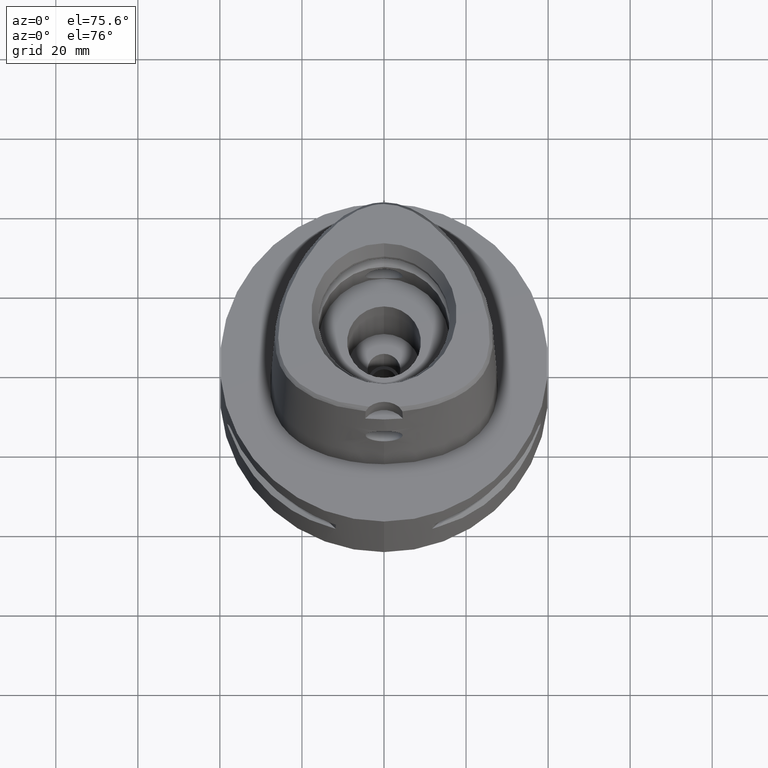
[diagram: clean part render]
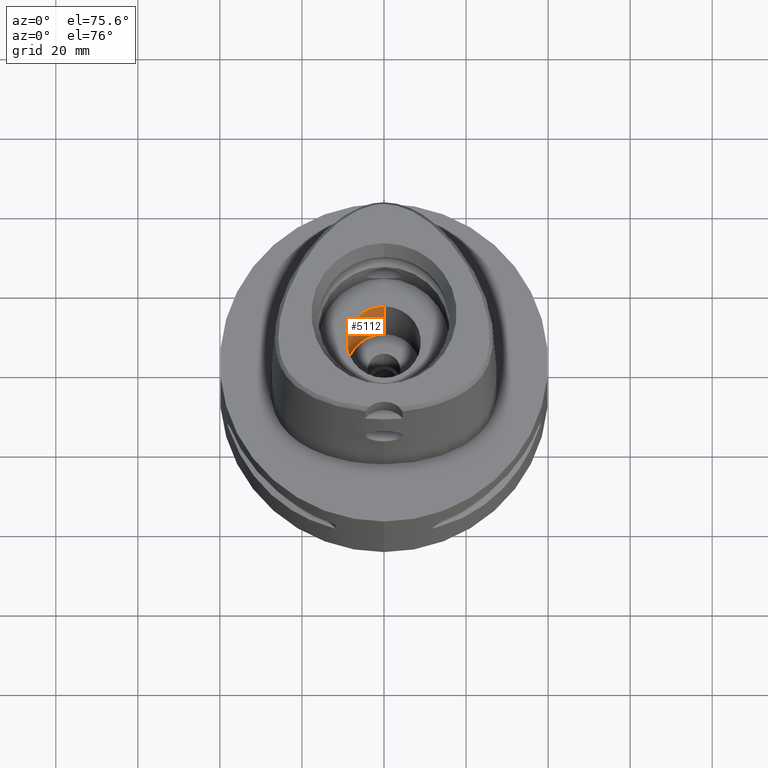
[diagram: same view with one face highlighted and labeled with its STEP entity id]
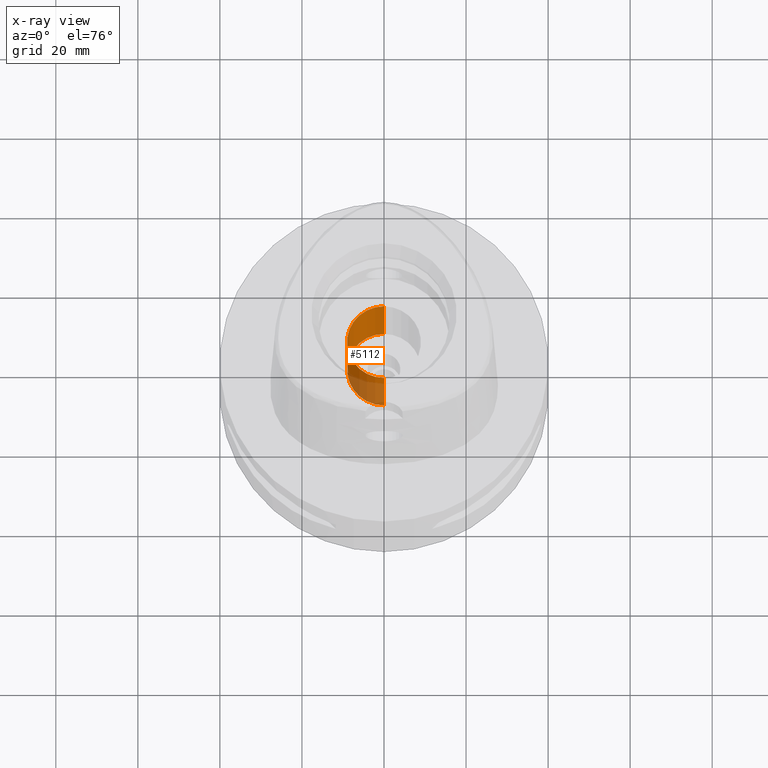
[diagram: x-ray of the same camera — body ghosted, the highlighted face saturated]
A machine part, auxiliary view. The second image highlights one B-rep face of the part: STEP entity #5112.
The next image is the same camera in x-ray: the body ghosted, the highlighted face saturated — about 33% of this face is hidden behind the body in this view.
In plain terms, the highlighted cylindrical surface (partial cylindrical patch) has radius 9 mm, axis along (0, 0, -1).
Its self-contained STEP definition (entity closure, byte-faithful):
#260 = FACE_OUTER_BOUND ( 'NONE', #3313, .T. ) ;
#412 = CARTESIAN_POINT ( 'NONE',  ( 0.0000000000000000000, -9.000000000000000000, -7.000000000000000000 ) ) ;
#490 = ORIENTED_EDGE ( 'NONE', *, *, #4978, .T. ) ;
#492 = CARTESIAN_POINT ( 'NONE',  ( 0.0000000000000000000, 0.0000000000000000000, -7.000000000000000000 ) ) ;
#521 = DIRECTION ( 'NONE',  ( 0.0000000000000000000, -1.000000000000000000, 0.0000000000000000000 ) ) ;
#564 = CARTESIAN_POINT ( 'NONE',  ( 0.0000000000000000000, 9.000000000000000000, 20.00000000000000000 ) ) ;
#630 = CYLINDRICAL_SURFACE ( 'NONE', #3900, 9.000000000000000000 ) ;
#769 = CIRCLE ( 'NONE', #4210, 9.000000000000000000 ) ;
#861 = AXIS2_PLACEMENT_3D ( 'NONE', #2663, #1924, #1441 ) ;
#877 = LINE ( 'NONE', #3241, #1823 ) ;
#1070 = EDGE_CURVE ( 'NONE', #3191, #1530, #877, .T. ) ;
#1137 = DIRECTION ( 'NONE',  ( 0.0000000000000000000, -1.000000000000000000, 0.0000000000000000000 ) ) ;
#1441 = DIRECTION ( 'NONE',  ( 0.0000000000000000000, 1.000000000000000000, 0.0000000000000000000 ) ) ;
#1530 = VERTEX_POINT ( 'NONE', #412 ) ;
#1782 = CARTESIAN_POINT ( 'NONE',  ( 0.0000000000000000000, 9.000000000000000000, -7.000000000000000000 ) ) ;
#1823 = VECTOR ( 'NONE', #3212, 1000.000000000000000 ) ;
#1924 = DIRECTION ( 'NONE',  ( 0.0000000000000000000, 0.0000000000000000000, 1.000000000000000000 ) ) ;
#2475 = DIRECTION ( 'NONE',  ( 0.0000000000000000000, 0.0000000000000000000, -1.000000000000000000 ) ) ;
#2502 = DIRECTION ( 'NONE',  ( 0.0000000000000000000, 0.0000000000000000000, 1.000000000000000000 ) ) ;
#2663 = CARTESIAN_POINT ( 'NONE',  ( 0.0000000000000000000, 0.0000000000000000000, 20.00000000000000000 ) ) ;
#2753 = ORIENTED_EDGE ( 'NONE', *, *, #1070, .T. ) ;
#2901 = CARTESIAN_POINT ( 'NONE',  ( 0.0000000000000000000, 9.000000000000000000, -7.000000000000000000 ) ) ;
#3076 = CARTESIAN_POINT ( 'NONE',  ( 0.0000000000000000000, 0.0000000000000000000, 50.39999999999999858 ) ) ;
#3181 = EDGE_CURVE ( 'NONE', #4860, #4296, #3735, .T. ) ;
#3191 = VERTEX_POINT ( 'NONE', #4096 ) ;
#3212 = DIRECTION ( 'NONE',  ( 0.0000000000000000000, 0.0000000000000000000, -1.000000000000000000 ) ) ;
#3241 = CARTESIAN_POINT ( 'NONE',  ( 0.0000000000000000000, -9.000000000000000000, 20.00000000000000000 ) ) ;
#3313 = EDGE_LOOP ( 'NONE', ( #490, #2753, #4659, #4344 ) ) ;
#3735 = LINE ( 'NONE', #1782, #4451 ) ;
#3900 = AXIS2_PLACEMENT_3D ( 'NONE', #3076, #4652, #1137 ) ;
#4096 = CARTESIAN_POINT ( 'NONE',  ( 0.0000000000000000000, -9.000000000000000000, 20.00000000000000000 ) ) ;
#4130 = CIRCLE ( 'NONE', #861, 9.000000000000000000 ) ;
#4210 = AXIS2_PLACEMENT_3D ( 'NONE', #492, #2475, #521 ) ;
#4296 = VERTEX_POINT ( 'NONE', #564 ) ;
#4344 = ORIENTED_EDGE ( 'NONE', *, *, #3181, .T. ) ;
#4350 = EDGE_CURVE ( 'NONE', #1530, #4860, #769, .T. ) ;
#4451 = VECTOR ( 'NONE', #2502, 1000.000000000000000 ) ;
#4652 = DIRECTION ( 'NONE',  ( 0.0000000000000000000, 0.0000000000000000000, -1.000000000000000000 ) ) ;
#4659 = ORIENTED_EDGE ( 'NONE', *, *, #4350, .T. ) ;
#4860 = VERTEX_POINT ( 'NONE', #2901 ) ;
#4978 = EDGE_CURVE ( 'NONE', #4296, #3191, #4130, .T. ) ;
#5112 = ADVANCED_FACE ( 'NONE', ( #260 ), #630, .F. ) ;